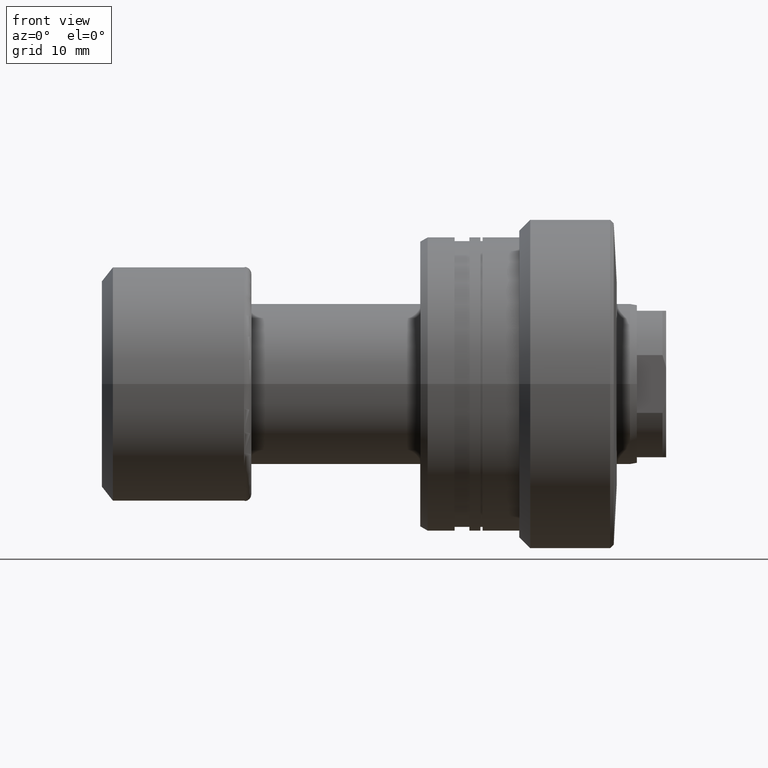
[diagram: clean part render]
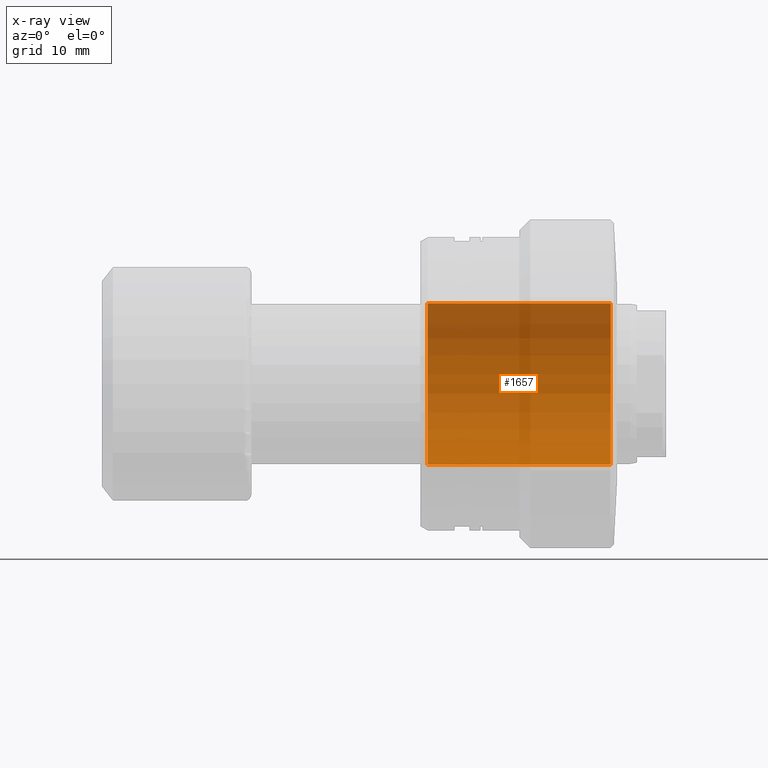
[diagram: x-ray — body ghosted, one internal face saturated and labeled with its STEP entity id]
A machine part, front view, then the same camera in x-ray: the body is ghosted and one INTERNAL B-rep face — a face not visible from any outside direction — is saturated and labeled: STEP entity #1657.
In plain terms, the highlighted cylindrical surface (partial cylindrical patch) has radius 11 mm, axis along (1, 0, 0).
Its self-contained STEP definition (entity closure, byte-faithful):
#83 = EDGE_CURVE ( 'NONE', #546, #2209, #1850, .T. ) ;
#135 = VECTOR ( 'NONE', #916, 1000.000000000000000 ) ;
#205 = CARTESIAN_POINT ( 'NONE',  ( -1.500000000000000000, 0.000000000000000000, -11.00000000000000000 ) ) ;
#235 = ORIENTED_EDGE ( 'NONE', *, *, #560, .T. ) ;
#475 = AXIS2_PLACEMENT_3D ( 'NONE', #1554, #836, #1375 ) ;
#483 = EDGE_LOOP ( 'NONE', ( #2343, #605, #235, #1644 ) ) ;
#495 = CYLINDRICAL_SURFACE ( 'NONE', #2011, 11.00000000000000000 ) ;
#546 = VERTEX_POINT ( 'NONE', #2275 ) ;
#560 = EDGE_CURVE ( 'NONE', #2010, #1038, #1150, .T. ) ;
#605 = ORIENTED_EDGE ( 'NONE', *, *, #1981, .T. ) ;
#836 = DIRECTION ( 'NONE',  ( -1.000000000000000000, -0.000000000000000000, -0.000000000000000000 ) ) ;
#916 = DIRECTION ( 'NONE',  ( 1.000000000000000000, -0.000000000000000000, -0.000000000000000000 ) ) ;
#941 = DIRECTION ( 'NONE',  ( 1.000000000000000000, 0.000000000000000000, 0.000000000000000000 ) ) ;
#983 = CIRCLE ( 'NONE', #1536, 11.00000000000000000 ) ;
#1011 = CARTESIAN_POINT ( 'NONE',  ( -26.49999999999999645, 0.000000000000000000, -11.00000000000000000 ) ) ;
#1038 = VERTEX_POINT ( 'NONE', #205 ) ;
#1123 = EDGE_CURVE ( 'NONE', #1038, #2209, #983, .T. ) ;
#1150 = LINE ( 'NONE', #2098, #1724 ) ;
#1266 = DIRECTION ( 'NONE',  ( 0.000000000000000000, 0.000000000000000000, -1.000000000000000000 ) ) ;
#1375 = DIRECTION ( 'NONE',  ( 0.000000000000000000, 0.000000000000000000, 1.000000000000000000 ) ) ;
#1455 = FACE_OUTER_BOUND ( 'NONE', #483, .T. ) ;
#1506 = DIRECTION ( 'NONE',  ( 0.000000000000000000, 0.000000000000000000, -1.000000000000000000 ) ) ;
#1536 = AXIS2_PLACEMENT_3D ( 'NONE', #2225, #941, #1506 ) ;
#1544 = CIRCLE ( 'NONE', #475, 11.00000000000000000 ) ;
#1546 = DIRECTION ( 'NONE',  ( 1.000000000000000000, -0.000000000000000000, -0.000000000000000000 ) ) ;
#1554 = CARTESIAN_POINT ( 'NONE',  ( -26.49999999999999645, 0.000000000000000000, 0.000000000000000000 ) ) ;
#1644 = ORIENTED_EDGE ( 'NONE', *, *, #1123, .T. ) ;
#1657 = ADVANCED_FACE ( 'NONE', ( #1455 ), #495, .F. ) ;
#1724 = VECTOR ( 'NONE', #1546, 1000.000000000000000 ) ;
#1850 = LINE ( 'NONE', #2405, #135 ) ;
#1981 = EDGE_CURVE ( 'NONE', #546, #2010, #1544, .T. ) ;
#2006 = DIRECTION ( 'NONE',  ( 1.000000000000000000, -0.000000000000000000, -0.000000000000000000 ) ) ;
#2010 = VERTEX_POINT ( 'NONE', #1011 ) ;
#2011 = AXIS2_PLACEMENT_3D ( 'NONE', #2186, #2006, #1266 ) ;
#2098 = CARTESIAN_POINT ( 'NONE',  ( -58.61269837220807233, 0.000000000000000000, -11.00000000000000000 ) ) ;
#2186 = CARTESIAN_POINT ( 'NONE',  ( -58.61269837220807233, 0.000000000000000000, 0.000000000000000000 ) ) ;
#2190 = CARTESIAN_POINT ( 'NONE',  ( -1.500000000000000000, 1.347111479062088405E-15, 11.00000000000000000 ) ) ;
#2209 = VERTEX_POINT ( 'NONE', #2190 ) ;
#2225 = CARTESIAN_POINT ( 'NONE',  ( -1.500000000000000000, 0.000000000000000000, 0.000000000000000000 ) ) ;
#2275 = CARTESIAN_POINT ( 'NONE',  ( -26.49999999999999645, 1.347111479062088405E-15, 11.00000000000000000 ) ) ;
#2343 = ORIENTED_EDGE ( 'NONE', *, *, #83, .F. ) ;
#2405 = CARTESIAN_POINT ( 'NONE',  ( -58.61269837220807233, 1.347111479062088405E-15, 11.00000000000000000 ) ) ;